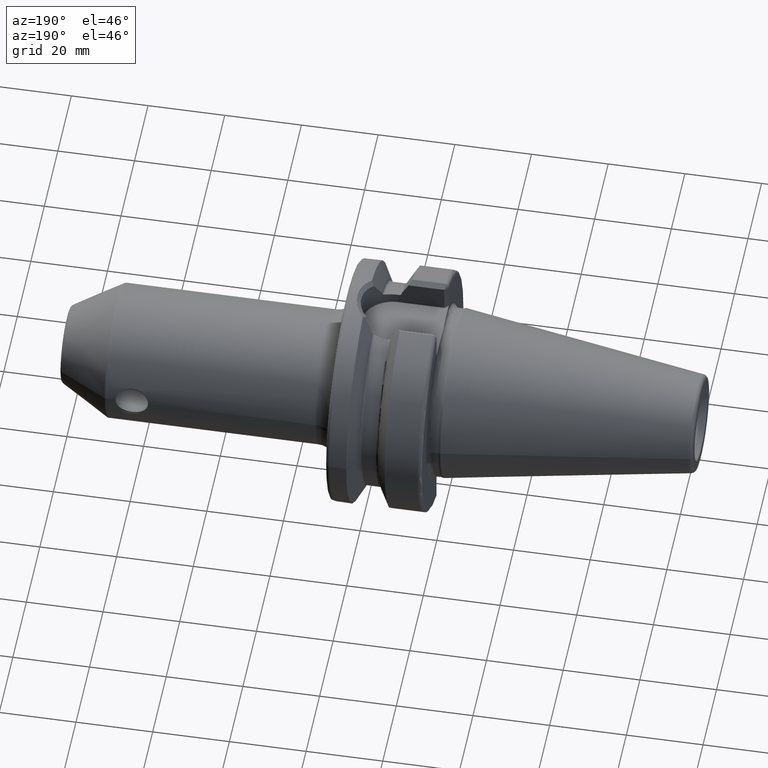
[diagram: clean part render]
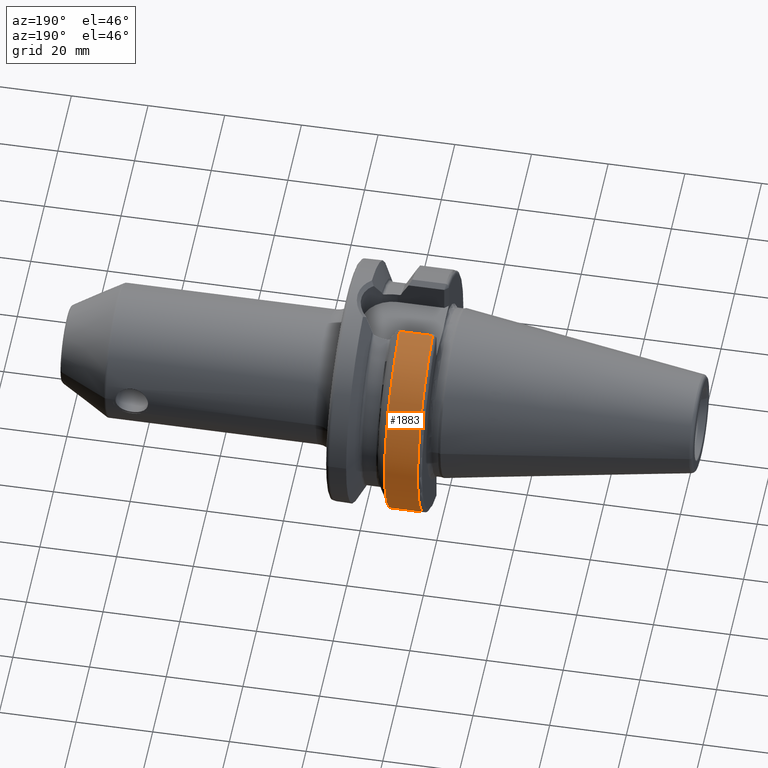
[diagram: same view with one face highlighted and labeled with its STEP entity id]
A machine part, auxiliary view. The second image highlights one B-rep face of the part: STEP entity #1883.
In plain terms, the highlighted cylindrical surface (partial cylindrical patch) has radius 31.4875 mm, axis along (1, 0, 0).
Its self-contained STEP definition (entity closure, byte-faithful):
#228=CARTESIAN_POINT('',(3.E0,0.E0,0.E0));
#229=DIRECTION('',(-1.E0,0.E0,0.E0));
#230=DIRECTION('',(0.E0,2.983189831898E-1,9.544662300305E-1));
#231=AXIS2_PLACEMENT_3D('',#228,#229,#230);
#233=DIRECTION('',(-9.999999999998E-1,-3.572441515959E-7,-4.802508939409E-7));
#234=VECTOR('',#233,8.572722533299E0);
#235=CARTESIAN_POINT('',(1.157272253103E1,9.052779463114E0,-3.015808084481E1));
#236=LINE('',#235,#234);
#237=CARTESIAN_POINT('',(1.157272253103E1,0.E0,0.E0));
#238=DIRECTION('',(1.E0,0.E0,0.E0));
#239=DIRECTION('',(0.E0,2.875039130802E-1,-9.577794631143E-1));
#240=AXIS2_PLACEMENT_3D('',#237,#238,#239);
#242=DIRECTION('',(9.999999999911E-1,2.496639373931E-6,-3.395432034657E-6));
#243=VECTOR('',#242,8.572722551500E0);
#244=CARTESIAN_POINT('',(2.999999979607E0,9.393297580193E0,3.005378452618E1));
#245=LINE('',#244,#243);
#576=CARTESIAN_POINT('',(2.999999997734E0,9.052776400559E0,-3.015808496187E1));
#1470=CARTESIAN_POINT('',(1.157272253103E1,9.052779463114E0,-3.015808084481E1));
#1471=CARTESIAN_POINT('',(1.157272253103E1,9.393318983190E0,3.005375541808E1));
#1472=VERTEX_POINT('',#1470);
#1473=VERTEX_POINT('',#1471);
#1485=CARTESIAN_POINT('',(3.E0,9.393347656107E0,3.005374645633E1));
#1487=VERTEX_POINT('',#1485);
#1502=VERTEX_POINT('',#576);
#1869=CARTESIAN_POINT('',(-7.002E1,0.E0,0.E0));
#1870=DIRECTION('',(1.E0,0.E0,0.E0));
#1871=DIRECTION('',(0.E0,-1.E0,0.E0));
#1872=AXIS2_PLACEMENT_3D('',#1869,#1870,#1871);
#1873=CYLINDRICAL_SURFACE('',#1872,3.14875E1);
#1875=ORIENTED_EDGE('',*,*,#1874,.T.);
#1877=ORIENTED_EDGE('',*,*,#1876,.F.);
#1878=ORIENTED_EDGE('',*,*,#1822,.T.);
#1880=ORIENTED_EDGE('',*,*,#1879,.F.);
#1881=EDGE_LOOP('',(#1875,#1877,#1878,#1880));
#1882=FACE_OUTER_BOUND('',#1881,.F.);
#1883=ADVANCED_FACE('',(#1882),#1873,.T.);
#232=CIRCLE('',#231,3.14875E1);
#241=CIRCLE('',#240,3.14875E1);
#1822=EDGE_CURVE('',#1472,#1473,#241,.T.);
#1874=EDGE_CURVE('',#1487,#1502,#232,.T.);
#1876=EDGE_CURVE('',#1472,#1502,#236,.T.);
#1879=EDGE_CURVE('',#1487,#1473,#245,.T.);